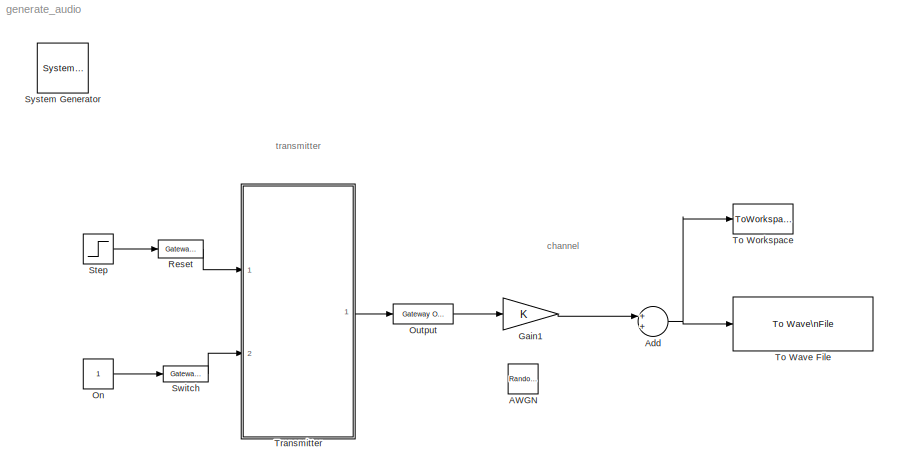
MODEL generate_audio
KIND model
CONFIG PreLoadFcn = Fs = 48000;\ncode_init = [0 0 0 0 0 1 0 1 1 1];\n
CONFIG StopFcn = figure(1)\nplot(signal);\nxlabel('Samples');\nylabel('Amplitude');\nlegend('Signal');\naxis([0 length(signal) -1.2 1.2]);
BLOCK [Reference]  System Generator  REF=xbsIndex_r4/ System Generator
  AttributesFormatString = System\\nGenerator
  FunctionWithSeparateData = off
  Ports = []
  RTWMemSecDataConstants = Inherit from model
  RTWMemSecDataInternal = Inherit from model
  RTWMemSecDataParameters = Inherit from model
  RTWMemSecFuncExecute = Inherit from model
  RTWMemSecFuncInitTerm = Inherit from model
  ShowPortLabels = FromPortIcon
  SourceBlock = xbsIndex_r4/ System Generator
  SourceType = Xilinx System Generator Block
  SystemSampleTime = -1
  Tag = genX
  UserData = DataTag0
  UserDataPersistent = on
  block_type = sysgen
  block_version = 9.2.01
  clock_wrapper = Clock Enables
  core_generation = According to Block Masks
  dbl_ovrd = According to Block Masks
  dcm_input_clock_period = 100
  deprecated_control = off
  directory = ./transmitter
  eval_field = 0
  has_advanced_control = 0
  incr_netlist = off
  infoedit = System Generator
  package = ff668
  part = xc4vsx35
  run_coregen = off
  sg_icon_stat = 51,50,-1,-1,red,beige,0,07734
  sg_mask_display = fprintf('','COMMENT: begin icon graphics');\npatch([0 51 51 0 ],[0 0 50 50 ],[0.93 0.92 0.86]);\npatch([12 4 16 4 12 25 29 33 47 36 25 17 29 17 25 36 47 33 29 25 12 ],[5 13 25 37 45 45 41 45 45 34 45 37 25 13 5 16 5 5 9 5 5 ],[0.6 0.2 0.25]);\nplot([0 0 51 51 0 ],[0 50 50 0 0 ]);\nfprintf('','COMMENT: end icon graphics');\nfprintf('','COMMENT: begin icon text');\nfprintf('','COMMENT: end icon text...<+5ch>
  sggui_pos = -1,-1,-1,-1
  simulink_period = 1/Fs
  speed = -12
  synthesis_tool = XST
  sysclk_period = 20
  testbench = off
  trim_vbits = Everywhere in SubSystem
  xilinxfamily = virtex4
BLOCK [RandomNumber] AWGN
  SampleTime = 1/Fs
  Seed = 56345
  Variance = 0.1
BLOCK [Sum] Add
  CollapseMode = All dimensions
  InputSameDT = off
  OutDataTypeMode = Inherit via internal rule
  OutScaling = 2^-10
  Ports = [2, 1]
  SaturateOnIntegerOverflow = off
BLOCK [Gain] Gain1
  OutDataTypeMode = Inherit via internal rule
  ParameterDataTypeMode = Inherit via internal rule
  SaturateOnIntegerOverflow = off
BLOCK [Constant] On
  SampleTime = 21/Fs
BLOCK [Reference] Output  REF=xbsIndex_r4/Gateway Out
  LOCs = {}
  Ports = [1, 1]
  SourceBlock = xbsIndex_r4/Gateway Out
  SourceType = Xilinx Gateway Out Block
  block_type = gatewayout
  block_version = 8.2.02
  has_advanced_control = 0
  hdl_port = on
  infoedit = Gateway out block.  Converts Xilinx fixed point inputs into ouputs of type Simulink integer, double, or fixed point.<P><P>Hardware notes:  In hardware these blocks become top level output ports or are discarded, depending on how they are configured.
  locs_specified = off
  sg_icon_stat = 60,20,1,1,white,yellow,0,38220381,right
  sg_mask_display = fprintf('','COMMENT: begin icon graphics');\npatch([0 60 60 0 ],[0 0 20 20 ],[0.95 0.93 0.65]);\npatch([24 21 26 21 24 29 30 31 37 33 29 26 31 26 29 33 37 31 30 29 24 ],[2 5 10 15 18 18 17 18 18 14 18 15 10 5 2 6 2 2 3 2 2 ],[0.98 0.96 0.92]);\nplot([0 60 60 0 0 ],[0 0 20 20 0 ]);\nfprintf('','COMMENT: end icon graphics');\nfprintf('','COMMENT: begin icon text');\ncolor('black');port_label('input'...<+132ch>
  sggui_pos = 50,50,356,372
  timing_constraint = None
  xl_area = [0,0,0,0,0,0,0]
  xl_use_area = off
BLOCK [Reference] Reset  REF=xbsIndex_r4/Gateway In
  LOCs = {}
  Ports = [1, 1]
  SourceBlock = xbsIndex_r4/Gateway In
  SourceType = Xilinx Gateway In Block
  arith_type = Boolean
  bin_pt = 14
  block_type = gatewayin
  block_version = 8.2.02
  dbl_ovrd = off
  has_advanced_control = 0
  infoedit = Gateway in block.  Converts inputs of type Simulink integer, double and fixed point to  Xilinx fixed point type.<P><P>Hardware notes:  In hardware these blocks become top level input ports.
  locs_specified = off
  n_bits = 16
  overflow = Saturate
  period = 21/Fs
  quantization = Round  (unbiased: +/- Inf)
  sg_icon_stat = 45,18,1,1,white,yellow,0,bc55d28f,right
  sg_mask_display = fprintf('','COMMENT: begin icon graphics');\npatch([0 65 65 0 ],[0 0 20 20 ],[0.95 0.93 0.65]);\npatch([27 24 29 24 27 32 33 34 40 36 32 29 34 29 32 36 40 34 33 32 27 ],[2 5 10 15 18 18 17 18 18 14 18 15 10 5 2 6 2 2 3 2 2 ],[0.98 0.96 0.92]);\nplot([0 65 65 0 0 ],[0 0 20 20 0 ]);\nfprintf('','COMMENT: end icon graphics');\nfprintf('','COMMENT: begin icon text');\ncolor('black');port_label('input'...<+131ch>
  sggui_pos = 20,20,356,432
  timing_constraint = None
  xl_area = [0,0,0,0,0,0,0]
  xl_use_area = off
BLOCK [Step] Step
  After = 0
  Before = 1
  SampleTime = 21/Fs
  Time = 10/Fs
BLOCK [Reference] Switch  REF=xbsIndex_r4/Gateway In
  LOCs = {}
  Ports = [1, 1]
  SourceBlock = xbsIndex_r4/Gateway In
  SourceType = Xilinx Gateway In Block
  arith_type = Boolean
  bin_pt = 14
  block_type = gatewayin
  block_version = 8.2.02
  dbl_ovrd = off
  has_advanced_control = 0
  infoedit = Gateway in block.  Converts inputs of type Simulink integer, double and fixed point to  Xilinx fixed point type.<P><P>Hardware notes:  In hardware these blocks become top level input ports.
  locs_specified = off
  n_bits = 16
  overflow = Saturate
  period = 21/Fs
  quantization = Round  (unbiased: +/- Inf)
  sg_icon_stat = 45,16,1,1,white,yellow,0,bc55d28f,right
  sg_mask_display = fprintf('','COMMENT: begin icon graphics');\npatch([0 65 65 0 ],[0 0 20 20 ],[0.95 0.93 0.65]);\npatch([27 24 29 24 27 32 33 34 40 36 32 29 34 29 32 36 40 34 33 32 27 ],[2 5 10 15 18 18 17 18 18 14 18 15 10 5 2 6 2 2 3 2 2 ],[0.98 0.96 0.92]);\nplot([0 65 65 0 0 ],[0 0 20 20 0 ]);\nfprintf('','COMMENT: end icon graphics');\nfprintf('','COMMENT: begin icon text');\ncolor('black');port_label('input'...<+131ch>
  sggui_pos = 20,20,356,432
  timing_constraint = None
  xl_area = [0,0,0,0,0,0,0]
  xl_use_area = off
BLOCK [Reference] To Wave File  REF=dspwin32/To Wave\nFile
  MinNumSamples = 256
  Ports = [1]
  SourceBlock = dspwin32/To Wave\nFile
  SourceType = To Wave File
  filename = baseband_audio
  sampleWidth = 16
BLOCK [ToWorkspace] To Workspace
  MaxDataPoints = inf
  SampleTime = -1
  SaveFormat = Array
  VariableName = signal
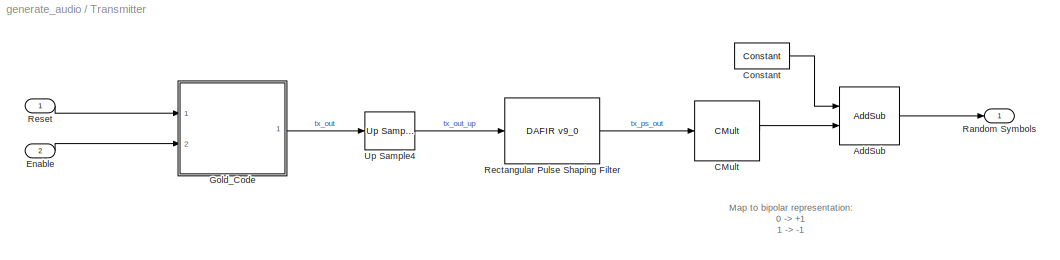
BLOCK [SubSystem] Transmitter
  FunctionWithSeparateData = off
  MaskHideContents = off
  MinAlgLoopOccurrences = off
  Ports = [2, 1]
  RTWSystemCode = Auto
BLOCK [Reference] Transmitter/AddSub  REF=xbsIndex_r4/AddSub
  Ports = [2, 1]
  SourceBlock = xbsIndex_r4/AddSub
  SourceType = Xilinx Adder/Subtractor Block
  arith_type = Unsigned
  bin_pt = 14
  block_type = addsub
  block_version = 10.1.2
  dbl_ovrd = off
  en = off
  has_advanced_control = 0
  latency = 0
  mode = Addition
  n_bits = 16
  overflow = Wrap
  pipelined = off
  precision = Full
  quantization = Truncate
  sg_icon_stat = 60,58,2,1,white,blue,0,36a47907,right
  sg_mask_display = fprintf('','COMMENT: begin icon graphics');\npatch([0 60 60 0 ],[0 0 58 58 ],[0.77 0.82 0.91]);\npatch([15 5 19 5 15 30 34 38 54 41 29 20 34 20 29 41 54 38 34 30 15 ],[6 16 30 44 54 54 50 54 54 41 53 44 30 16 7 19 6 6 10 6 6 ],[0.98 0.96 0.92]);\nplot([0 60 60 0 0 ],[0 0 58 58 0 ]);\nfprintf('','COMMENT: end icon graphics');\nfprintf('','COMMENT: begin icon text');\ncolor('black');port_label('inpu...<+163ch>
  sggui_pos = -1,-1,-1,-1
  use_behavioral_HDL = off
  use_carryin = off
  use_carryout = off
  use_rpm = on
  xl_area = [0,0,0,0,0,0,0]
  xl_use_area = off
BLOCK [Reference] Transmitter/CMult  REF=xbsIndex_r4/CMult
  Ports = [1, 1]
  SourceBlock = xbsIndex_r4/CMult
  SourceType = Xilinx Constant Multiplier Block
  arith_type = Signed  (2's comp)
  bin_pt = 0
  block_type = cmult
  block_version = 10.1.2
  const = -2
  const_bin_pt = 0
  const_n_bits = 3
  dbl_ovrd = off
  en = off
  has_advanced_control = 0
  latency = 0
  mem_type = Distributed RAM
  n_bits = 3
  overflow = Wrap
  pipeline = off
  placement_style = Rectangular Shape
  precision = User Defined
  quantization = Truncate
  sg_icon_stat = 65,60,1,1,white,blue,2,3aebe2de,right
  sg_mask_display = fprintf('','COMMENT: begin icon graphics');\npatch([0 65 0 ],[0 30 60 ],[0.77 0.82 0.91]);\npatch([8 2 10 2 8 17 19 21 31 23 16 11 19 11 16 23 31 21 19 17 8 ],[16.4 22.4 30.4 38.4 44.4 44.4 42.4 44.4 44.4 36.4 43.4 38.4 30.4 22.4 17.4 24.4 16.4 16.4 18.4 16.4 16.4 ],[0.98 0.96 0.92]);\nplot([0 65 0 0 ],[0 30 60 0 ]);\nfprintf('','COMMENT: end icon graphics');\nfprintf('','COMMENT: begin icon text'...<+96ch>
  sggui_pos = 20,20,367,381
  use_behavioral_HDL = off
  use_rpm = off
  xl_area = [0,0,0,0,0,0,0]
  xl_use_area = off
BLOCK [Reference] Transmitter/Constant  REF=xbsIndex_r4/Constant
  Ports = [0, 1]
  SourceBlock = xbsIndex_r4/Constant
  SourceType = Xilinx Constant Block Block
  arith_type = Signed (2's comp)
  bin_pt = 0
  block_type = constant
  block_version = 10.1.2
  carry = CIN
  const = 1
  dbl_ovrd = off
  dsp48_infoedit = The use of this block for DSP48 instructions is deprecated.  Please use the Opmode block.
  equ = P=C
  explicit_period = off
  has_advanced_control = 0
  inp1 = P
  inp2 = PCIN>>17
  n_bits = 2
  opr = +
  opselect = C
  period = 1
  sg_icon_stat = 55,26,0,1,white,blue,0,06094819,right
  sg_mask_display = fprintf('','COMMENT: begin icon graphics');\npatch([0 55 55 0 ],[0 0 26 26 ],[0.77 0.82 0.91]);\npatch([20 16 22 16 20 27 29 31 38 32 26 22 28 22 26 32 38 31 29 27 20 ],[3 7 13 19 23 23 21 23 23 17 23 19 13 7 3 9 3 3 5 3 3 ],[0.98 0.96 0.92]);\nplot([0 55 55 0 0 ],[0 0 26 26 0 ]);\nfprintf('','COMMENT: end icon graphics');\nfprintf('','COMMENT: begin icon text');\ncolor('black');port_label('output...<+50ch>
  sggui_pos = 20,20,400,346
BLOCK [Inport] Transmitter/Enable
  IconDisplay = Port number
  Port = 2
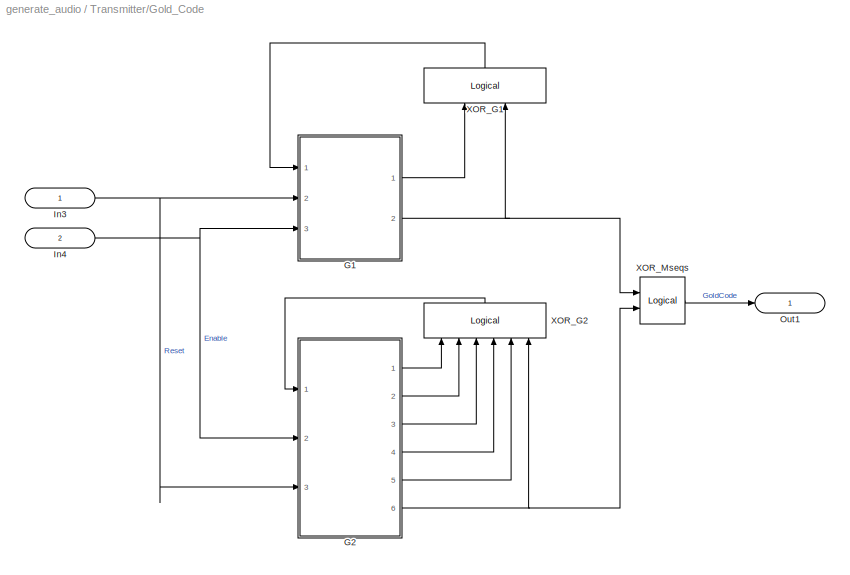
BLOCK [SubSystem] Transmitter/Gold_Code
  FunctionWithSeparateData = off
  MaskHideContents = off
  MinAlgLoopOccurrences = off
  Ports = [2, 1]
  RTWSystemCode = Auto
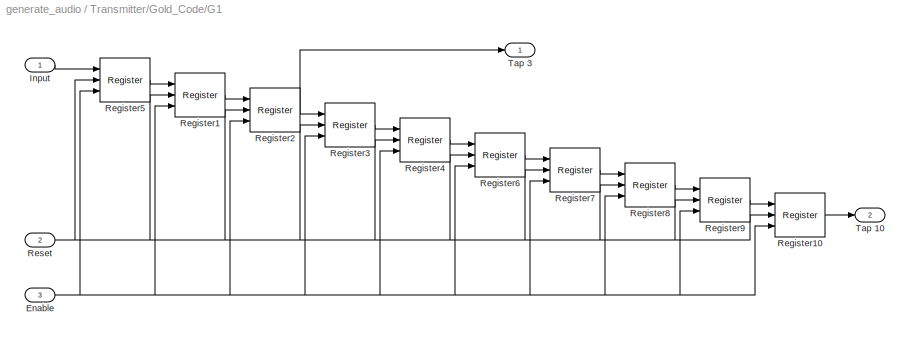
BLOCK [SubSystem] Transmitter/Gold_Code/G1
  FunctionWithSeparateData = off
  MaskHideContents = off
  MinAlgLoopOccurrences = off
  Ports = [3, 2]
  RTWSystemCode = Auto
BLOCK [Inport] Transmitter/Gold_Code/G1/Enable
  IconDisplay = Port number
  Port = 3
BLOCK [Inport] Transmitter/Gold_Code/G1/Input
  IconDisplay = Port number
BLOCK [Reference] Transmitter/Gold_Code/G1/Register1  REF=xbsIndex_r4/Register
  Ports = [3, 1]
  SourceBlock = xbsIndex_r4/Register
  SourceType = Xilinx Register Block
  block_type = register
  block_version = 8.2.01
  dbl_ovrd = off
  en = on
  has_advanced_control = 0
  init = 1
  rst = on
  sg_icon_stat = 50,44,1,1,white,blue,0,923c1847,right
  sg_mask_display = fprintf('','COMMENT: begin icon graphics');\npatch([0 60 60 0 ],[0 0 56 56 ],[0.77 0.82 0.91]);\npatch([15 6 19 6 15 30 34 38 54 41 29 20 32 20 29 41 54 38 34 30 15 ],[6 15 28 41 50 50 46 50 50 37 49 40 28 16 7 19 6 6 10 6 6 ],[0.98 0.96 0.92]);\nplot([0 60 60 0 0 ],[0 0 56 56 0 ]);\nfprintf('','COMMENT: end icon graphics');\nfprintf('','COMMENT: begin icon text');\ncolor('black');port_label('inpu...<+237ch>  <repeated x20 — deduplicated; at blocks: Register1, Register10, Register2, Register3, Register4, Register5, Register6, Register7, Register8, Register9>
  sggui_pos = -1,-1,-1,-1
  xl_area = [0,0,0,0,0,0,0]
  xl_use_area = off
BLOCK [Reference] Transmitter/Gold_Code/G1/Register10  REF=xbsIndex_r4/Register
  Ports = [3, 1]
  SourceBlock = xbsIndex_r4/Register
  SourceType = Xilinx Register Block
  block_type = register
  block_version = 8.2.01
  dbl_ovrd = off
  en = on
  has_advanced_control = 0
  init = 1
  rst = on
  sg_icon_stat = 50,44,1,1,white,blue,0,923c1847,right
  sggui_pos = -1,-1,-1,-1
  xl_area = [0,0,0,0,0,0,0]
  xl_use_area = off
BLOCK [Reference] Transmitter/Gold_Code/G1/Register2  REF=xbsIndex_r4/Register
  Ports = [3, 1]
  SourceBlock = xbsIndex_r4/Register
  SourceType = Xilinx Register Block
  block_type = register
  block_version = 8.2.01
  dbl_ovrd = off
  en = on
  has_advanced_control = 0
  init = 1
  rst = on
  sg_icon_stat = 50,44,1,1,white,blue,0,923c1847,right
  sggui_pos = 20,20,348,193
  xl_area = [0,0,0,0,0,0,0]
  xl_use_area = off
BLOCK [Reference] Transmitter/Gold_Code/G1/Register3  REF=xbsIndex_r4/Register
  Ports = [3, 1]
  SourceBlock = xbsIndex_r4/Register
  SourceType = Xilinx Register Block
  block_type = register
  block_version = 8.2.01
  dbl_ovrd = off
  en = on
  has_advanced_control = 0
  init = 1
  rst = on
  sg_icon_stat = 50,44,1,1,white,blue,0,923c1847,right
  sggui_pos = -1,-1,-1,-1
  xl_area = [0,0,0,0,0,0,0]
  xl_use_area = off
BLOCK [Reference] Transmitter/Gold_Code/G1/Register4  REF=xbsIndex_r4/Register
  Ports = [3, 1]
  SourceBlock = xbsIndex_r4/Register
  SourceType = Xilinx Register Block
  block_type = register
  block_version = 8.2.01
  dbl_ovrd = off
  en = on
  has_advanced_control = 0
  init = 1
  rst = on
  sg_icon_stat = 50,44,1,1,white,blue,0,923c1847,right
  sggui_pos = -1,-1,-1,-1
  xl_area = [0,0,0,0,0,0,0]
  xl_use_area = off
BLOCK [Reference] Transmitter/Gold_Code/G1/Register5  REF=xbsIndex_r4/Register
  Ports = [3, 1]
  SourceBlock = xbsIndex_r4/Register
  SourceType = Xilinx Register Block
  block_type = register
  block_version = 8.2.01
  dbl_ovrd = off
  en = on
  has_advanced_control = 0
  init = 1
  rst = on
  sg_icon_stat = 50,44,1,1,white,blue,0,923c1847,right
  sggui_pos = 20,20,348,193
  xl_area = [0,0,0,0,0,0,0]
  xl_use_area = off
BLOCK [Reference] Transmitter/Gold_Code/G1/Register6  REF=xbsIndex_r4/Register
  Ports = [3, 1]
  SourceBlock = xbsIndex_r4/Register
  SourceType = Xilinx Register Block
  block_type = register
  block_version = 8.2.01
  dbl_ovrd = off
  en = on
  has_advanced_control = 0
  init = 1
  rst = on
  sg_icon_stat = 50,44,1,1,white,blue,0,923c1847,right
  sggui_pos = 20,20,348,193
  xl_area = [0,0,0,0,0,0,0]
  xl_use_area = off
BLOCK [Reference] Transmitter/Gold_Code/G1/Register7  REF=xbsIndex_r4/Register
  Ports = [3, 1]
  SourceBlock = xbsIndex_r4/Register
  SourceType = Xilinx Register Block
  block_type = register
  block_version = 8.2.01
  dbl_ovrd = off
  en = on
  has_advanced_control = 0
  init = 1
  rst = on
  sg_icon_stat = 50,44,1,1,white,blue,0,923c1847,right
  sggui_pos = -1,-1,-1,-1
  xl_area = [0,0,0,0,0,0,0]
  xl_use_area = off
BLOCK [Reference] Transmitter/Gold_Code/G1/Register8  REF=xbsIndex_r4/Register
  Ports = [3, 1]
  SourceBlock = xbsIndex_r4/Register
  SourceType = Xilinx Register Block
  block_type = register
  block_version = 8.2.01
  dbl_ovrd = off
  en = on
  has_advanced_control = 0
  init = 1
  rst = on
  sg_icon_stat = 50,44,1,1,white,blue,0,923c1847,right
  sggui_pos = -1,-1,-1,-1
  xl_area = [0,0,0,0,0,0,0]
  xl_use_area = off
BLOCK [Reference] Transmitter/Gold_Code/G1/Register9  REF=xbsIndex_r4/Register
  Ports = [3, 1]
  SourceBlock = xbsIndex_r4/Register
  SourceType = Xilinx Register Block
  block_type = register
  block_version = 8.2.01
  dbl_ovrd = off
  en = on
  has_advanced_control = 0
  init = 1
  rst = on
  sg_icon_stat = 50,44,1,1,white,blue,0,923c1847,right
  sggui_pos = -1,-1,-1,-1
  xl_area = [0,0,0,0,0,0,0]
  xl_use_area = off
BLOCK [Inport] Transmitter/Gold_Code/G1/Reset
  IconDisplay = Port number
  Port = 2
BLOCK [Outport] Transmitter/Gold_Code/G1/Tap 10
  BusOutputAsStruct = off
  IconDisplay = Port number
  Port = 2
BLOCK [Outport] Transmitter/Gold_Code/G1/Tap 3
  BusOutputAsStruct = off
  IconDisplay = Port number
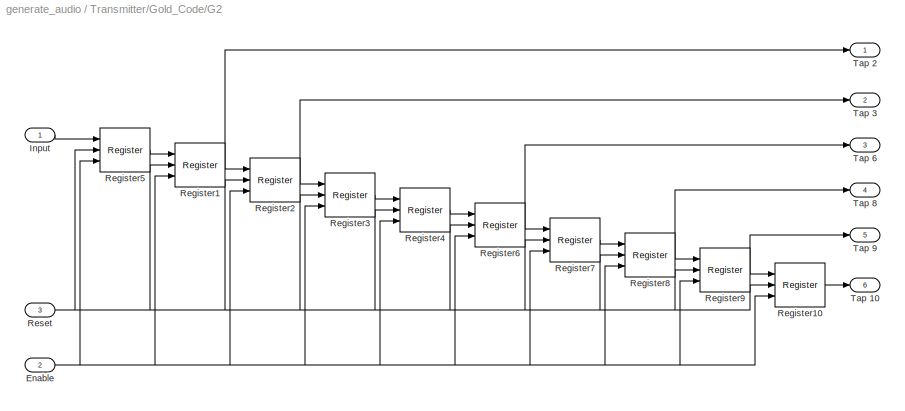
BLOCK [SubSystem] Transmitter/Gold_Code/G2
  FunctionWithSeparateData = off
  MaskHideContents = off
  MinAlgLoopOccurrences = off
  Ports = [3, 6]
  RTWSystemCode = Auto
BLOCK [Inport] Transmitter/Gold_Code/G2/Enable
  IconDisplay = Port number
  Port = 2
BLOCK [Inport] Transmitter/Gold_Code/G2/Input
  IconDisplay = Port number
BLOCK [Reference] Transmitter/Gold_Code/G2/Register1  REF=xbsIndex_r4/Register
  Ports = [3, 1]
  SourceBlock = xbsIndex_r4/Register
  SourceType = Xilinx Register Block
  block_type = register
  block_version = 8.2.01
  dbl_ovrd = off
  en = on
  has_advanced_control = 0
  init = code_init(2)
  rst = on
  sg_icon_stat = 50,44,3,1,white,blue,0,923c1847,right
  sggui_pos = 20,20,348,193
  xl_area = [0,0,0,0,0,0,0]
  xl_use_area = off
BLOCK [Reference] Transmitter/Gold_Code/G2/Register10  REF=xbsIndex_r4/Register
  Ports = [3, 1]
  SourceBlock = xbsIndex_r4/Register
  SourceType = Xilinx Register Block
  block_type = register
  block_version = 8.2.01
  dbl_ovrd = off
  en = on
  has_advanced_control = 0
  init = code_init(10)
  rst = on
  sg_icon_stat = 50,44,3,1,white,blue,0,923c1847,right
  sggui_pos = 20,20,348,193
  xl_area = [0,0,0,0,0,0,0]
  xl_use_area = off
BLOCK [Reference] Transmitter/Gold_Code/G2/Register2  REF=xbsIndex_r4/Register
  Ports = [3, 1]
  SourceBlock = xbsIndex_r4/Register
  SourceType = Xilinx Register Block
  block_type = register
  block_version = 8.2.01
  dbl_ovrd = off
  en = on
  has_advanced_control = 0
  init = code_init(3)
  rst = on
  sg_icon_stat = 50,44,3,1,white,blue,0,923c1847,right
  sggui_pos = 20,20,348,193
  xl_area = [0,0,0,0,0,0,0]
  xl_use_area = off
BLOCK [Reference] Transmitter/Gold_Code/G2/Register3  REF=xbsIndex_r4/Register
  Ports = [3, 1]
  SourceBlock = xbsIndex_r4/Register
  SourceType = Xilinx Register Block
  block_type = register
  block_version = 8.2.01
  dbl_ovrd = off
  en = on
  has_advanced_control = 0
  init = code_init(4)
  rst = on
  sg_icon_stat = 50,44,3,1,white,blue,0,923c1847,right
  sggui_pos = 20,20,348,193
  xl_area = [0,0,0,0,0,0,0]
  xl_use_area = off
BLOCK [Reference] Transmitter/Gold_Code/G2/Register4  REF=xbsIndex_r4/Register
  Ports = [3, 1]
  SourceBlock = xbsIndex_r4/Register
  SourceType = Xilinx Register Block
  block_type = register
  block_version = 8.2.01
  dbl_ovrd = off
  en = on
  has_advanced_control = 0
  init = code_init(5)
  rst = on
  sg_icon_stat = 50,44,3,1,white,blue,0,923c1847,right
  sggui_pos = 20,20,348,193
  xl_area = [0,0,0,0,0,0,0]
  xl_use_area = off
BLOCK [Reference] Transmitter/Gold_Code/G2/Register5  REF=xbsIndex_r4/Register
  Ports = [3, 1]
  SourceBlock = xbsIndex_r4/Register
  SourceType = Xilinx Register Block
  block_type = register
  block_version = 8.2.01
  dbl_ovrd = off
  en = on
  has_advanced_control = 0
  init = code_init(1)\n
  rst = on
  sg_icon_stat = 50,44,3,1,white,blue,0,923c1847,right
  sggui_pos = 20,20,348,193
  xl_area = [0,0,0,0,0,0,0]
  xl_use_area = off
BLOCK [Reference] Transmitter/Gold_Code/G2/Register6  REF=xbsIndex_r4/Register
  Ports = [3, 1]
  SourceBlock = xbsIndex_r4/Register
  SourceType = Xilinx Register Block
  block_type = register
  block_version = 8.2.01
  dbl_ovrd = off
  en = on
  has_advanced_control = 0
  init = code_init(6)
  rst = on
  sg_icon_stat = 50,44,3,1,white,blue,0,923c1847,right
  sggui_pos = 20,20,348,193
  xl_area = [0,0,0,0,0,0,0]
  xl_use_area = off
BLOCK [Reference] Transmitter/Gold_Code/G2/Register7  REF=xbsIndex_r4/Register
  Ports = [3, 1]
  SourceBlock = xbsIndex_r4/Register
  SourceType = Xilinx Register Block
  block_type = register
  block_version = 8.2.01
  dbl_ovrd = off
  en = on
  has_advanced_control = 0
  init = code_init(7)
  rst = on
  sg_icon_stat = 50,44,3,1,white,blue,0,923c1847,right
  sggui_pos = 20,20,348,193
  xl_area = [0,0,0,0,0,0,0]
  xl_use_area = off
BLOCK [Reference] Transmitter/Gold_Code/G2/Register8  REF=xbsIndex_r4/Register
  Ports = [3, 1]
  SourceBlock = xbsIndex_r4/Register
  SourceType = Xilinx Register Block
  block_type = register
  block_version = 8.2.01
  dbl_ovrd = off
  en = on
  has_advanced_control = 0
  init = code_init(8)
  rst = on
  sg_icon_stat = 50,44,3,1,white,blue,0,923c1847,right
  sggui_pos = 20,20,348,193
  xl_area = [0,0,0,0,0,0,0]
  xl_use_area = off
BLOCK [Reference] Transmitter/Gold_Code/G2/Register9  REF=xbsIndex_r4/Register
  Ports = [3, 1]
  SourceBlock = xbsIndex_r4/Register
  SourceType = Xilinx Register Block
  block_type = register
  block_version = 8.2.01
  dbl_ovrd = off
  en = on
  has_advanced_control = 0
  init = code_init(9)
  rst = on
  sg_icon_stat = 50,44,3,1,white,blue,0,923c1847,right
  sggui_pos = 20,20,348,193
  xl_area = [0,0,0,0,0,0,0]
  xl_use_area = off
BLOCK [Inport] Transmitter/Gold_Code/G2/Reset
  IconDisplay = Port number
  Port = 3
BLOCK [Outport] Transmitter/Gold_Code/G2/Tap 10
  BusOutputAsStruct = off
  IconDisplay = Port number
  Port = 6
BLOCK [Outport] Transmitter/Gold_Code/G2/Tap 2
  BusOutputAsStruct = off
  IconDisplay = Port number
BLOCK [Outport] Transmitter/Gold_Code/G2/Tap 3
  BusOutputAsStruct = off
  IconDisplay = Port number
  Port = 2
BLOCK [Outport] Transmitter/Gold_Code/G2/Tap 6
  BusOutputAsStruct = off
  IconDisplay = Port number
  Port = 3
BLOCK [Outport] Transmitter/Gold_Code/G2/Tap 8
  BusOutputAsStruct = off
  IconDisplay = Port number
  Port = 4
BLOCK [Outport] Transmitter/Gold_Code/G2/Tap 9
  BusOutputAsStruct = off
  IconDisplay = Port number
  Port = 5
BLOCK [Inport] Transmitter/Gold_Code/In3
  IconDisplay = Port number and signal name
BLOCK [Inport] Transmitter/Gold_Code/In4
  IconDisplay = Port number and signal name
  Port = 2
BLOCK [Outport] Transmitter/Gold_Code/Out1
  BusOutputAsStruct = off
  IconDisplay = Port number and signal name
BLOCK [Reference] Transmitter/Gold_Code/XOR_G1  REF=xbsIndex_r4/Logical
  Ports = [2, 1]
  SourceBlock = xbsIndex_r4/Logical
  SourceType = Xilinx Logical Block Block
  align_bp = on
  arith_type = Unsigned
  bin_pt = 0
  block_type = logical
  block_version = 8.2.01
  dbl_ovrd = off
  en = off
  has_advanced_control = 0
  inputs = 2
  latency = 0
  logical_function = XOR
  n_bits = 1
  precision = User Defined
  sg_icon_stat = 122,35,1,1,white,blue,0,54bbd59c,up
  sg_mask_display = fprintf('','COMMENT: begin icon graphics');\npatch([0 55 55 0 ],[0 0 60 60 ],[0.77 0.82 0.91]);\npatch([13 4 17 4 13 28 32 36 52 40 28 19 32 19 28 40 52 36 32 28 13 ],[8 17 30 43 52 52 48 52 52 40 52 43 30 17 8 20 8 8 12 8 8 ],[0.98 0.96 0.92]);\nplot([0 55 55 0 0 ],[0 0 60 60 0 ]);\nfprintf('','COMMENT: end icon graphics');\nfprintf('','COMMENT: begin icon text');\ncolor('black');disp('\\newlinex...<+76ch>  <repeated x3 — deduplicated; at blocks: XOR_G1, XOR_G2, XOR_Mseqs>
  sggui_pos = -1,-1,-1,-1
  xl_area = [0,0,0,0,0,0,0]
  xl_use_area = off
BLOCK [Reference] Transmitter/Gold_Code/XOR_G2  REF=xbsIndex_r4/Logical
  Ports = [6, 1]
  SourceBlock = xbsIndex_r4/Logical
  SourceType = Xilinx Logical Block Block
  align_bp = on
  arith_type = Unsigned
  bin_pt = 0
  block_type = logical
  block_version = 8.2.01
  dbl_ovrd = off
  en = off
  has_advanced_control = 0
  inputs = 6
  latency = 0
  logical_function = XOR
  n_bits = 1
  precision = User Defined
  sg_icon_stat = 122,35,1,1,white,blue,0,73062fba,up
  sggui_pos = 20,20,348,261
  xl_area = [0,0,0,0,0,0,0]
  xl_use_area = off
BLOCK [Reference] Transmitter/Gold_Code/XOR_Mseqs  REF=xbsIndex_r4/Logical
  Ports = [2, 1]
  SourceBlock = xbsIndex_r4/Logical
  SourceType = Xilinx Logical Block Block
  align_bp = on
  arith_type = Unsigned
  bin_pt = 0
  block_type = logical
  block_version = 8.2.01
  dbl_ovrd = off
  en = off
  has_advanced_control = 0
  inputs = 2
  latency = 0
  logical_function = XOR
  n_bits = 1
  precision = User Defined
  sg_icon_stat = 45,47,1,1,white,blue,0,54bbd59c,right
  sggui_pos = -1,-1,-1,-1
  xl_area = [0,0,0,0,0,0,0]
  xl_use_area = off
BLOCK [Outport] Transmitter/Random Symbols
  BusOutputAsStruct = off
  IconDisplay = Port number
BLOCK [Reference] Transmitter/Rectangular Pulse Shaping Filter  REF=xbsIndex_r4/DAFIR v9_0 
  Ports = [1, 1]
  SourceBlock = xbsIndex_r4/DAFIR v9_0
  SourceType = Xilinx Finite Impulse Response Filter Block
  block_type = fir
  block_version = 9.1.01
  coef = ones(1,21)
  coef_bin_pt = 0
  coef_n_bits = 2
  dbl_ovrd = off
  explicit_period = off
  has_advanced_control = 0
  infoedit = Hardware notes: Implemented using distributed arithmetic (DA).  The hardware over sampling rate determines the degree of parallelism.  A rate of one produces a fully parallel DA filter.  A rate of n (resp., n+1) for an n-bit input signal produces a fully serial implementation for a non-symmetric (resp., symmetric) impulse response.  Intermediate values produce implementations with intermediate lev...<+19ch>
  latency = 12
  num_channels = 1
  over_sample = 1
  period = 1
  polyphase_behavior = Single Rate:  sample in - sample out
  reload = off
  rst = off
  serial_input = off
  sg_icon_stat = 95,66,1,1,white,blue,0,f1bfa3fd,right
  sg_mask_display = fprintf('','COMMENT: begin icon graphics');\npatch([0 60 60 0 ],[0 0 62 62 ],[0.77 0.82 0.91]);\npatch([14 4 18 4 14 30 34 38 55 42 29 20 35 20 29 42 55 38 34 30 14 ],[7 17 31 45 55 55 51 55 55 42 55 46 31 16 7 20 7 7 11 7 7 ],[0.98 0.96 0.92]);\nplot([0 60 60 0 0 ],[0 0 62 62 0 ]);\nfprintf('','COMMENT: end icon graphics');\nfprintf('','COMMENT: begin icon text');\ncolor('black');port_label('inpu...<+129ch>
  sggui_pos = 20,20,356,489
  structure = Inferred from Coefficients
  use_isim = 0
  valids = off
  xl_area = [0,0,0,0,0,0,0]
  xl_use_area = off
BLOCK [Inport] Transmitter/Reset
  IconDisplay = Port number
BLOCK [Reference] Transmitter/Up Sample4  REF=xbsIndex_r4/Up Sample
  Ports = [1, 1]
  SourceBlock = xbsIndex_r4/Up Sample
  SourceType = Xilinx Up Sampler Block
  block_type = usamp
  block_version = 9.1.01
  copy_samples = off
  dbl_ovrd = off
  has_advanced_control = 0
  infoedit = Up samples input data.  Inserted values  can be zeros or copies of the most recent input sample.<P><P>Hardware notes: No hardware is needed if inserted values are copies of the input sample; otherwise, a mux and single bit flip-flop are used.
  sample_ratio = 21
  sg_icon_stat = 50,38,1,1,white,blue,0,81db46e5,right
  sg_mask_display = fprintf('','COMMENT: begin icon graphics');\npatch([0 60 60 0 ],[0 0 54 54 ],[0.77 0.82 0.91]);\npatch([16 7 20 7 16 30 34 38 53 41 29 21 35 21 29 41 53 38 34 30 16 ],[6 15 28 41 50 50 46 50 50 38 50 42 28 14 6 18 6 6 10 6 6 ],[0.98 0.96 0.92]);\nplot([0 60 60 0 0 ],[0 0 54 54 0 ]);\nfprintf('','COMMENT: end icon graphics');\nfprintf('','COMMENT: begin icon text');\ncolor('black');disp('{\\fontsiz...<+82ch>
  sggui_pos = 20,20,356,266
  xl_area = [0,0,0,0,0,0,0]
  xl_use_area = off
ANNOTATION (root): channel
ANNOTATION (root): transmitter
ANNOTATION Transmitter: Map to bipolar representation:\n0 -> +1\n1 -> -1
NET Add:1 -> To Wave File:1, To Workspace:1
LINE Gain1:1 -> Add:1
LINE On:1 -> Switch:1
LINE Output:1 -> Gain1:1
LINE Reset:1 -> Transmitter:1
LINE Step:1 -> Reset:1
LINE Switch:1 -> Transmitter:2
LINE Transmitter/AddSub:1 -> Transmitter/Random Symbols:1
LINE Transmitter/CMult:1 -> Transmitter/AddSub:2
LINE Transmitter/Constant:1 -> Transmitter/AddSub:1
LINE Transmitter/Enable:1 -> Transmitter/Gold_Code:2
NET Transmitter/Gold_Code/G1/Enable:1 -> Transmitter/Gold_Code/G1/Register10:3, Transmitter/Gold_Code/G1/Register1:3, Transmitter/Gold_Code/G1/Register2:3, Transmitter/Gold_Code/G1/Register3:3, Transmitter/Gold_Code/G1/Register4:3, Transmitter/Gold_Code/G1/Register5:3, Transmitter/Gold_Code/G1/Register6:3, Transmitter/Gold_Code/G1/Register7:3, Transmitter/Gold_Code/G1/Register8:3, Transmitter/Gold_Code/G1/Register9:3
LINE Transmitter/Gold_Code/G1/Input:1 -> Transmitter/Gold_Code/G1/Register5:1
LINE Transmitter/Gold_Code/G1/Register10:1 -> Transmitter/Gold_Code/G1/Tap 10:1
LINE Transmitter/Gold_Code/G1/Register1:1 -> Transmitter/Gold_Code/G1/Register2:1
NET Transmitter/Gold_Code/G1/Register2:1 -> Transmitter/Gold_Code/G1/Register3:1, Transmitter/Gold_Code/G1/Tap 3:1
LINE Transmitter/Gold_Code/G1/Register3:1 -> Transmitter/Gold_Code/G1/Register4:1
LINE Transmitter/Gold_Code/G1/Register4:1 -> Transmitter/Gold_Code/G1/Register6:1
LINE Transmitter/Gold_Code/G1/Register5:1 -> Transmitter/Gold_Code/G1/Register1:1
LINE Transmitter/Gold_Code/G1/Register6:1 -> Transmitter/Gold_Code/G1/Register7:1
LINE Transmitter/Gold_Code/G1/Register7:1 -> Transmitter/Gold_Code/G1/Register8:1
LINE Transmitter/Gold_Code/G1/Register8:1 -> Transmitter/Gold_Code/G1/Register9:1
LINE Transmitter/Gold_Code/G1/Register9:1 -> Transmitter/Gold_Code/G1/Register10:1
NET Transmitter/Gold_Code/G1/Reset:1 -> Transmitter/Gold_Code/G1/Register10:2, Transmitter/Gold_Code/G1/Register1:2, Transmitter/Gold_Code/G1/Register2:2, Transmitter/Gold_Code/G1/Register3:2, Transmitter/Gold_Code/G1/Register4:2, Transmitter/Gold_Code/G1/Register5:2, Transmitter/Gold_Code/G1/Register6:2, Transmitter/Gold_Code/G1/Register7:2, Transmitter/Gold_Code/G1/Register8:2, Transmitter/Gold_Code/G1/Register9:2
LINE Transmitter/Gold_Code/G1:1 -> Transmitter/Gold_Code/XOR_G1:1
NET Transmitter/Gold_Code/G1:2 -> Transmitter/Gold_Code/XOR_G1:2, Transmitter/Gold_Code/XOR_Mseqs:1
NET Transmitter/Gold_Code/G2/Enable:1 -> Transmitter/Gold_Code/G2/Register10:3, Transmitter/Gold_Code/G2/Register1:3, Transmitter/Gold_Code/G2/Register2:3, Transmitter/Gold_Code/G2/Register3:3, Transmitter/Gold_Code/G2/Register4:3, Transmitter/Gold_Code/G2/Register5:3, Transmitter/Gold_Code/G2/Register6:3, Transmitter/Gold_Code/G2/Register7:3, Transmitter/Gold_Code/G2/Register8:3, Transmitter/Gold_Code/G2/Register9:3
LINE Transmitter/Gold_Code/G2/Input:1 -> Transmitter/Gold_Code/G2/Register5:1
LINE Transmitter/Gold_Code/G2/Register10:1 -> Transmitter/Gold_Code/G2/Tap 10:1
NET Transmitter/Gold_Code/G2/Register1:1 -> Transmitter/Gold_Code/G2/Register2:1, Transmitter/Gold_Code/G2/Tap 2:1
NET Transmitter/Gold_Code/G2/Register2:1 -> Transmitter/Gold_Code/G2/Register3:1, Transmitter/Gold_Code/G2/Tap 3:1
LINE Transmitter/Gold_Code/G2/Register3:1 -> Transmitter/Gold_Code/G2/Register4:1
LINE Transmitter/Gold_Code/G2/Register4:1 -> Transmitter/Gold_Code/G2/Register6:1
LINE Transmitter/Gold_Code/G2/Register5:1 -> Transmitter/Gold_Code/G2/Register1:1
NET Transmitter/Gold_Code/G2/Register6:1 -> Transmitter/Gold_Code/G2/Register7:1, Transmitter/Gold_Code/G2/Tap 6:1
LINE Transmitter/Gold_Code/G2/Register7:1 -> Transmitter/Gold_Code/G2/Register8:1
NET Transmitter/Gold_Code/G2/Register8:1 -> Transmitter/Gold_Code/G2/Register9:1, Transmitter/Gold_Code/G2/Tap 8:1
NET Transmitter/Gold_Code/G2/Register9:1 -> Transmitter/Gold_Code/G2/Register10:1, Transmitter/Gold_Code/G2/Tap 9:1
NET Transmitter/Gold_Code/G2/Reset:1 -> Transmitter/Gold_Code/G2/Register10:2, Transmitter/Gold_Code/G2/Register1:2, Transmitter/Gold_Code/G2/Register2:2, Transmitter/Gold_Code/G2/Register3:2, Transmitter/Gold_Code/G2/Register4:2, Transmitter/Gold_Code/G2/Register5:2, Transmitter/Gold_Code/G2/Register6:2, Transmitter/Gold_Code/G2/Register7:2, Transmitter/Gold_Code/G2/Register8:2, Transmitter/Gold_Code/G2/Register9:2
LINE Transmitter/Gold_Code/G2:1 -> Transmitter/Gold_Code/XOR_G2:1
LINE Transmitter/Gold_Code/G2:2 -> Transmitter/Gold_Code/XOR_G2:2
LINE Transmitter/Gold_Code/G2:3 -> Transmitter/Gold_Code/XOR_G2:3
LINE Transmitter/Gold_Code/G2:4 -> Transmitter/Gold_Code/XOR_G2:4
LINE Transmitter/Gold_Code/G2:5 -> Transmitter/Gold_Code/XOR_G2:5
NET Transmitter/Gold_Code/G2:6 -> Transmitter/Gold_Code/XOR_G2:6, Transmitter/Gold_Code/XOR_Mseqs:2
NET Transmitter/Gold_Code/In3:1 -> Transmitter/Gold_Code/G1:2, Transmitter/Gold_Code/G2:3
NET Transmitter/Gold_Code/In4:1 -> Transmitter/Gold_Code/G1:3, Transmitter/Gold_Code/G2:2
LINE Transmitter/Gold_Code/XOR_G1:1 -> Transmitter/Gold_Code/G1:1
LINE Transmitter/Gold_Code/XOR_G2:1 -> Transmitter/Gold_Code/G2:1
LINE Transmitter/Gold_Code/XOR_Mseqs:1 -> Transmitter/Gold_Code/Out1:1
LINE Transmitter/Gold_Code:1 -> Transmitter/Up Sample4:1
LINE Transmitter/Rectangular Pulse Shaping Filter:1 -> Transmitter/CMult:1
LINE Transmitter/Reset:1 -> Transmitter/Gold_Code:1
LINE Transmitter/Up Sample4:1 -> Transmitter/Rectangular Pulse Shaping Filter:1
LINE Transmitter:1 -> Output:1
note: NET lines group one-source signal fan-out (src -> all destinations, sorted); 1:1 wires keep LINE
